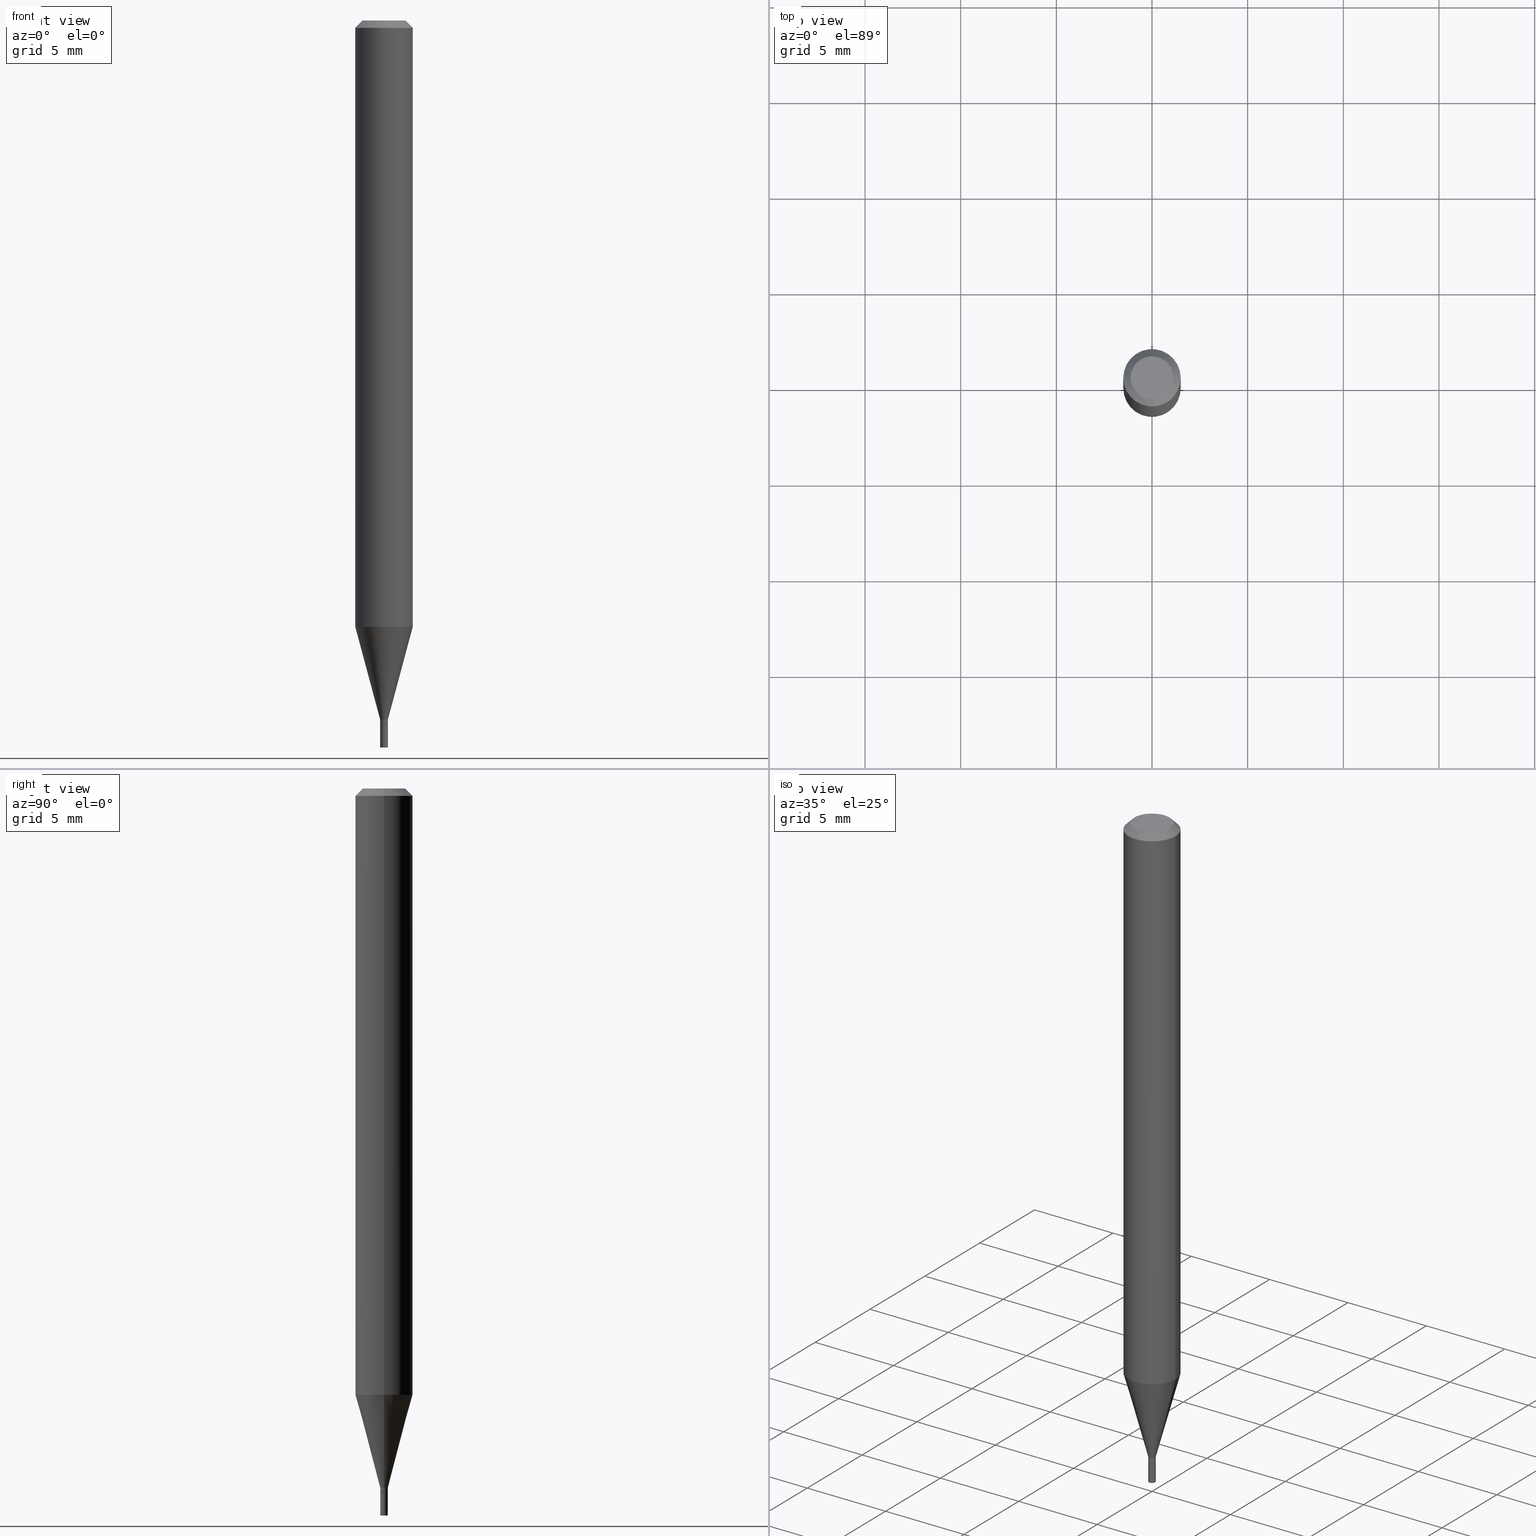
[diagram: canonical four-view strip — front | top / right | iso, engineering-drawing reading convention]
A machine part, canonical four-view strip (front | top / right | iso — engineering-drawing reading convention). The complete STEP part file that produces these views, byte-faithful:
ISO-10303-21;
HEADER;
FILE_DESCRIPTION (( 'STEP AP203' ),
    '1' );
FILE_NAME ('01825.STEP',
    '2024-03-20T01:41:43',
    ( '' ),
    ( '' ),
    'SwSTEP 2.0',
    'SolidWorks 2023',
    '' );
FILE_SCHEMA (( 'CONFIG_CONTROL_DESIGN' ));
ENDSEC;

DATA;
#1 = DIRECTION ( 'NONE',  ( -1.000000000000000000, 6.982962677686265922E-15, -4.876176775795935793E-29 ) ) ;
#2 = EDGE_CURVE ( 'NONE', #284, #251, #164, .T. ) ;
#3 = APPROVAL_STATUS ( 'not_yet_approved' ) ;
#4 = AXIS2_PLACEMENT_3D ( 'NONE', #116, #323, #402 ) ;
#5 = SECURITY_CLASSIFICATION ( '', '', #56 ) ;
#6 = APPLICATION_PROTOCOL_DEFINITION ( 'international standard', 'config_control_design', 1994, #61 ) ;
#7 = APPROVAL_ROLE ( '' ) ;
#8 = DIRECTION ( 'NONE',  ( 1.000000000000000000, -6.982962677686266711E-15, 4.876176775795936353E-29 ) ) ;
#9 = ORIENTED_EDGE ( 'NONE', *, *, #221, .F. ) ;
#10 = DIRECTION ( 'NONE',  ( -2.445468806185136597E-29, 3.491481338843145583E-15, 1.000000000000000000 ) ) ;
#11 = CARTESIAN_POINT ( 'NONE',  ( 3.519274158981029926E-29, -5.024590794729170365E-15, -1.439100000000000046 ) ) ;
#12 = VERTEX_POINT ( 'NONE', #329 ) ;
#13 = VECTOR ( 'NONE', #100, 39.37007874015748143 ) ;
#14 = CC_DESIGN_APPROVAL ( #41, ( #419 ) ) ;
#15 = LINE ( 'NONE', #246, #107 ) ;
#16 = ORIENTED_EDGE ( 'NONE', *, *, #454, .F. ) ;
#17 = LINE ( 'NONE', #400, #273 ) ;
#18 = CARTESIAN_POINT ( 'NONE',  ( 3.658665880933582389E-29, -5.223605231043229660E-15, -1.496099999999999985 ) ) ;
#19 = LINE ( 'NONE', #124, #418 ) ;
#20 = DIRECTION ( 'NONE',  ( -0.2588190451025214611, 5.211531920934550253E-15, 0.9659258262890679791 ) ) ;
#21 = AXIS2_PLACEMENT_3D ( 'NONE', #185, #360, #109 ) ;
#22 = PLANE ( 'NONE',  #257 ) ;
#23 = ORIENTED_EDGE ( 'NONE', *, *, #140, .T. ) ;
#24 =( NAMED_UNIT ( * ) PLANE_ANGLE_UNIT ( ) SI_UNIT ( $, .RADIAN. ) );
#25 = CARTESIAN_POINT ( 'NONE',  ( 3.577647911566500614E-29, -5.339627574433336753E-15, -1.496099999999999985 ) ) ;
#26 = LINE ( 'NONE', #237, #91 ) ;
#27 = CALENDAR_DATE ( 2024, 19, 3 ) ;
#28 = ADVANCED_FACE ( 'NONE', ( #449 ), #433, .T. ) ;
#29 = CIRCLE ( 'NONE', #208, 0.04404999999999999888 ) ;
#30 = ORGANIZATION ( 'UNSPECIFIED', 'UNSPECIFIED', '' ) ;
#31 = DIRECTION ( 'NONE',  ( -2.445468806185136597E-29, 3.491481338843145583E-15, 1.000000000000000000 ) ) ;
#32 = VECTOR ( 'NONE', #431, 39.37007874015748143 ) ;
#33 = DIRECTION ( 'NONE',  ( 1.000000000000000000, -6.982962677686265922E-15, 4.876176775795935793E-29 ) ) ;
#34 = ORIENTED_EDGE ( 'NONE', *, *, #132, .F. ) ;
#35 = EDGE_CURVE ( 'NONE', #193, #284, #412, .T. ) ;
#36 = PERSON_AND_ORGANIZATION ( #195, #30 ) ;
#37 = VERTEX_POINT ( 'NONE', #296 ) ;
#38 = AXIS2_PLACEMENT_3D ( 'NONE', #212, #307, #137 ) ;
#39 = CC_DESIGN_APPROVAL ( #88, ( #5 ) ) ;
#40 = DIRECTION ( 'NONE',  ( -2.445468806185136877E-29, 3.491481338843145188E-15, 1.000000000000000000 ) ) ;
#41 = APPROVAL ( #172, 'UNSPECIFIED' ) ;
#42 = ORIENTED_EDGE ( 'NONE', *, *, #132, .T. ) ;
#43 = AXIS2_PLACEMENT_3D ( 'NONE', #422, #96, #33 ) ;
#44 = ORIENTED_EDGE ( 'NONE', *, *, #108, .T. ) ;
#45 = EDGE_CURVE ( 'NONE', #254, #81, #372, .T. ) ;
#46 = ORIENTED_EDGE ( 'NONE', *, *, #102, .T. ) ;
#47 = ADVANCED_FACE ( 'NONE', ( #445 ), #231, .T. ) ;
#48 = CARTESIAN_POINT ( 'NONE',  ( -1.129890276342019696E-44, 1.613183862664992778E-30, 4.620342216119358569E-16 ) ) ;
#49 = ORIENTED_EDGE ( 'NONE', *, *, #416, .T. ) ;
#50 = CIRCLE ( 'NONE', #325, 0.05904999999999999832 ) ;
#51 = LINE ( 'NONE', #196, #426 ) ;
#52 = EDGE_LOOP ( 'NONE', ( #457, #153, #293, #432 ) ) ;
#53 = CARTESIAN_POINT ( 'NONE',  ( 0.000000000000000000, 0.000000000000000000, 0.000000000000000000 ) ) ;
#54 = VERTEX_POINT ( 'NONE', #361 ) ;
#55 = EDGE_CURVE ( 'NONE', #37, #12, #152, .T. ) ;
#56 = SECURITY_CLASSIFICATION_LEVEL ( 'unclassified' ) ;
#57 = VECTOR ( 'NONE', #224, 39.37007874015748143 ) ;
#58 = AXIS2_PLACEMENT_3D ( 'NONE', #465, #143, #312 ) ;
#59 = DIRECTION ( 'NONE',  ( -2.445468806185136597E-29, 3.491481338843145583E-15, 1.000000000000000000 ) ) ;
#60 = EDGE_CURVE ( 'NONE', #12, #37, #415, .T. ) ;
#61 = APPLICATION_CONTEXT ( 'configuration controlled 3d designs of mechanical parts and assemblies' ) ;
#62 = AXIS2_PLACEMENT_3D ( 'NONE', #413, #375, #301 ) ;
#63 = EDGE_LOOP ( 'NONE', ( #194, #327, #260, #376 ) ) ;
#64 = LINE ( 'NONE', #274, #188 ) ;
#65 = DIRECTION ( 'NONE',  ( -2.445468806185136597E-29, 3.491481338843145583E-15, 1.000000000000000000 ) ) ;
#66 = ORIENTED_EDGE ( 'NONE', *, *, #168, .F. ) ;
#67 = CIRCLE ( 'NONE', #389, 0.007849999999999921277 ) ;
#68 = AXIS2_PLACEMENT_3D ( 'NONE', #11, #253, #71 ) ;
#69 = DIRECTION ( 'NONE',  ( -2.445468806185136877E-29, 3.491481338843145188E-15, 1.000000000000000000 ) ) ;
#70 = EDGE_CURVE ( 'NONE', #192, #284, #67, .T. ) ;
#71 = DIRECTION ( 'NONE',  ( 1.000000000000000000, -6.982962677686276177E-15, 0.000000000000000000 ) ) ;
#72 = ORIENTED_EDGE ( 'NONE', *, *, #140, .F. ) ;
#73 = ORIENTED_EDGE ( 'NONE', *, *, #215, .F. ) ;
#74 = CONICAL_SURFACE ( 'NONE', #462, 0.05904999999999999832, 0.7853981633974330689 ) ;
#75 = ADVANCED_FACE ( 'NONE', ( #466 ), #142, .F. ) ;
#76 = AXIS2_PLACEMENT_3D ( 'NONE', #25, #446, #261 ) ;
#77 = DIRECTION ( 'NONE',  ( -2.445468806185136597E-29, 3.491481338843145583E-15, 1.000000000000000000 ) ) ;
#78 = LENGTH_MEASURE_WITH_UNIT ( LENGTH_MEASURE( 0.02539999999999999897 ), #184 );
#79 = DIRECTION ( 'NONE',  ( -2.445468806185136597E-29, 3.491481338843145583E-15, 1.000000000000000000 ) ) ;
#80 = EDGE_LOOP ( 'NONE', ( #160, #97, #216, #291 ) ) ;
#81 = VERTEX_POINT ( 'NONE', #461 ) ;
#82 = DIRECTION ( 'NONE',  ( 2.438088387897960049E-29, -3.491481338843145188E-15, -1.000000000000000000 ) ) ;
#83 = ADVANCED_FACE ( 'NONE', ( #311 ), #74, .T. ) ;
#84 = CARTESIAN_POINT ( 'NONE',  ( 0.007349999999999998895, -5.110132087530827984E-15, -1.448899999999999855 ) ) ;
#85 = AXIS2_PLACEMENT_3D ( 'NONE', #154, #438, #112 ) ;
#86 = FACE_OUTER_BOUND ( 'NONE', #437, .T. ) ;
#87 = APPROVAL_ROLE ( '' ) ;
#88 = APPROVAL ( #127, 'UNSPECIFIED' ) ;
#89 = EDGE_CURVE ( 'NONE', #251, #406, #64, .T. ) ;
#90 = DIRECTION ( 'NONE',  ( -2.445468806185136597E-29, 3.491481338843145583E-15, 1.000000000000000000 ) ) ;
#91 = VECTOR ( 'NONE', #95, 39.37007874015748143 ) ;
#92 = CC_DESIGN_SECURITY_CLASSIFICATION ( #5, ( #419 ) ) ;
#93 = PERSON_AND_ORGANIZATION_ROLE ( 'creator' ) ;
#94 = CARTESIAN_POINT ( 'NONE',  ( 0.05904999999999999832, -4.574846268510561447E-16, -0.01499999999999999944 ) ) ;
#95 = DIRECTION ( 'NONE',  ( -2.445468806185136877E-29, 3.491481338843145188E-15, 1.000000000000000000 ) ) ;
#96 = DIRECTION ( 'NONE',  ( -2.438088387897960049E-29, 3.491481338843145188E-15, 1.000000000000000000 ) ) ;
#97 = ORIENTED_EDGE ( 'NONE', *, *, #168, .T. ) ;
#98 = DIRECTION ( 'NONE',  ( 1.000000000000000000, -6.982962677686265922E-15, 4.819687581474398999E-29 ) ) ;
#99 = AXIS2_PLACEMENT_3D ( 'NONE', #53, #79, #122 ) ;
#100 = DIRECTION ( 'NONE',  ( -0.7071067811865642261, 7.493145998870414114E-15, 0.7071067811865309194 ) ) ;
#101 = DIRECTION ( 'NONE',  ( 1.000000000000000000, -6.982962677686261189E-15, 0.000000000000000000 ) ) ;
#102 = EDGE_CURVE ( 'NONE', #314, #407, #342, .T. ) ;
#103 = ORIENTED_EDGE ( 'NONE', *, *, #2, .T. ) ;
#104 = ORIENTED_EDGE ( 'NONE', *, *, #60, .F. ) ;
#105 = CYLINDRICAL_SURFACE ( 'NONE', #399, 0.007849999999999999339 ) ;
#106 = ORIENTED_EDGE ( 'NONE', *, *, #215, .T. ) ;
#107 = VECTOR ( 'NONE', #40, 39.37007874015748143 ) ;
#108 = EDGE_CURVE ( 'NONE', #370, #111, #336, .T. ) ;
#109 = DIRECTION ( 'NONE',  ( 1.000000000000000000, -6.982962677686327453E-15, 0.000000000000000000 ) ) ;
#110 = CARTESIAN_POINT ( 'NONE',  ( 0.000000000000000000, 0.000000000000000000, 0.000000000000000000 ) ) ;
#111 = VERTEX_POINT ( 'NONE', #141 ) ;
#112 = DIRECTION ( 'NONE',  ( 1.000000000000000000, -6.982962677686276177E-15, 0.000000000000000000 ) ) ;
#113 = EDGE_CURVE ( 'NONE', #180, #192, #421, .T. ) ;
#114 = EDGE_LOOP ( 'NONE', ( #381, #245, #230, #123 ) ) ;
#115 = PRODUCT ( '01825', '01825', '', ( #144 ) ) ;
#116 = CARTESIAN_POINT ( 'NONE',  ( 3.668203209277705088E-31, -5.237222008264718399E-17, -0.01499999999999999944 ) ) ;
#117 = ORIENTED_EDGE ( 'NONE', *, *, #45, .F. ) ;
#118 = CONICAL_SURFACE ( 'NONE', #235, 0.007349999999999998895, 0.7853981633974718157 ) ;
#119 = DIRECTION ( 'NONE',  ( -2.445468806185136597E-29, 3.491481338843145583E-15, 1.000000000000000000 ) ) ;
#120 = DIRECTION ( 'NONE',  ( -2.445468806185136597E-29, 3.491481338843145583E-15, 1.000000000000000000 ) ) ;
#121 = CC_DESIGN_DATE_AND_TIME_ASSIGNMENT ( #134, #385, ( #272 ) ) ;
#122 = DIRECTION ( 'NONE',  ( 1.000000000000000000, -6.982962677686265922E-15, 4.876176775795935793E-29 ) ) ;
#123 = ORIENTED_EDGE ( 'NONE', *, *, #70, .F. ) ;
#124 = CARTESIAN_POINT ( 'NONE',  ( -0.007849999999999919542, 5.577760475716729290E-17, -3.861364045850061986E-31 ) ) ;
#125 = ORIENTED_EDGE ( 'NONE', *, *, #239, .F. ) ;
#126 = CARTESIAN_POINT ( 'NONE',  ( 0.000000000000000000, 0.000000000000000000, 0.000000000000000000 ) ) ;
#127 = APPROVAL_STATUS ( 'not_yet_approved' ) ;
#128 = AXIS2_PLACEMENT_3D ( 'NONE', #18, #393, #179 ) ;
#129 = AXIS2_PLACEMENT_3D ( 'NONE', #156, #10, #101 ) ;
#130 = APPROVAL_PERSON_ORGANIZATION ( #139, #88, #234 ) ;
#131 = PERSON_AND_ORGANIZATION ( #195, #30 ) ;
#132 = EDGE_CURVE ( 'NONE', #37, #111, #26, .T. ) ;
#133 = ADVANCED_FACE ( 'NONE', ( #244 ), #302, .F. ) ;
#134 = DATE_AND_TIME ( #27, #390 ) ;
#135 = DIRECTION ( 'NONE',  ( 0.2588190451025214611, 1.565188264969620982E-15, 0.9659258262890679791 ) ) ;
#136 = AXIS2_PLACEMENT_3D ( 'NONE', #126, #59, #205 ) ;
#137 = DIRECTION ( 'NONE',  ( 1.000000000000000000, -6.982962677686273021E-15, 0.000000000000000000 ) ) ;
#138 = DATE_AND_TIME ( #384, #304 ) ;
#139 = PERSON_AND_ORGANIZATION ( #195, #30 ) ;
#140 = EDGE_CURVE ( 'NONE', #392, #54, #183, .T. ) ;
#141 = CARTESIAN_POINT ( 'NONE',  ( -0.007849999999999999339, -5.085428666689364293E-15, -1.448899999999999855 ) ) ;
#142 = PLANE ( 'NONE',  #334 ) ;
#143 = DIRECTION ( 'NONE',  ( -2.445468806185136597E-29, 3.491481338843145583E-15, 1.000000000000000000 ) ) ;
#144 = MECHANICAL_CONTEXT ( 'NONE', #61, 'mechanical' ) ;
#145 = ADVANCED_FACE ( 'NONE', ( #452 ), #209, .T. ) ;
#146 = DIRECTION ( 'NONE',  ( 1.000000000000000000, -6.982962677686273021E-15, 0.000000000000000000 ) ) ;
#147 = DIRECTION ( 'NONE',  ( 0.7071067811865368036, -7.319954787623219758E-15, -0.7071067811865583419 ) ) ;
#148 = ADVANCED_FACE ( 'NONE', ( #460 ), #105, .T. ) ;
#149 = CARTESIAN_POINT ( 'NONE',  ( -0.007849999999999921277, -5.001283966423245454E-15, -1.448400000000000132 ) ) ;
#150 = FACE_OUTER_BOUND ( 'NONE', #227, .T. ) ;
#151 = CARTESIAN_POINT ( 'NONE',  ( -0.007349999999999998895, -5.003933193597356655E-15, -1.448899999999999855 ) ) ;
#152 = CIRCLE ( 'NONE', #303, 0.007849999999999999339 ) ;
#153 = ORIENTED_EDGE ( 'NONE', *, *, #265, .T. ) ;
#154 = CARTESIAN_POINT ( 'NONE',  ( 3.519274158981029926E-29, -5.024590794729170365E-15, -1.439100000000000046 ) ) ;
#155 = EDGE_LOOP ( 'NONE', ( #66, #401, #247, #23 ) ) ;
#156 = CARTESIAN_POINT ( 'NONE',  ( 3.543239753281643902E-29, -5.058807311849834201E-15, -1.448899999999999855 ) ) ;
#157 = FACE_OUTER_BOUND ( 'NONE', #440, .T. ) ;
#158 = ORIENTED_EDGE ( 'NONE', *, *, #55, .F. ) ;
#159 = CYLINDRICAL_SURFACE ( 'NONE', #99, 0.007849999999999999339 ) ;
#160 = ORIENTED_EDGE ( 'NONE', *, *, #377, .F. ) ;
#161 = AXIS2_PLACEMENT_3D ( 'NONE', #423, #382, #98 ) ;
#162 = DIRECTION ( 'NONE',  ( 1.000000000000000000, -6.982962677686265922E-15, 4.876176775795935793E-29 ) ) ;
#163 = DIRECTION ( 'NONE',  ( -2.445468806185136597E-29, 3.491481338843145583E-15, 1.000000000000000000 ) ) ;
#164 = LINE ( 'NONE', #300, #232 ) ;
#165 = CARTESIAN_POINT ( 'NONE',  ( 0.007849999999999921277, -5.111877828200249487E-15, -1.448400000000000132 ) ) ;
#166 = APPLICATION_CONTEXT ( 'configuration controlled 3d designs of mechanical parts and assemblies' ) ;
#167 = CARTESIAN_POINT ( 'NONE',  ( 3.668203209277705088E-31, -5.237222008264718399E-17, -0.01499999999999999944 ) ) ;
#168 = EDGE_CURVE ( 'NONE', #407, #54, #171, .T. ) ;
#169 = COORDINATED_UNIVERSAL_TIME_OFFSET ( 5, 0, .BEHIND. ) ;
#170 = CIRCLE ( 'NONE', #68, 0.007849999999999917807 ) ;
#171 = LINE ( 'NONE', #94, #405 ) ;
#172 = APPROVAL_STATUS ( 'not_yet_approved' ) ;
#173 = DATE_TIME_ROLE ( 'classification_date' ) ;
#174 = CIRCLE ( 'NONE', #223, 0.007349999999999998895 ) ;
#175 = CARTESIAN_POINT ( 'NONE',  ( 0.05904999999999999138, -4.769778990434194719E-15, -1.248018998652473677 ) ) ;
#176 = DIRECTION ( 'NONE',  ( -1.000000000000000000, 6.982962677686266711E-15, 0.000000000000000000 ) ) ;
#177 = FACE_OUTER_BOUND ( 'NONE', #114, .T. ) ;
#178 = ORIENTED_EDGE ( 'NONE', *, *, #113, .T. ) ;
#179 = DIRECTION ( 'NONE',  ( 1.000000000000000000, -6.982962677686327453E-15, 0.000000000000000000 ) ) ;
#180 = VERTEX_POINT ( 'NONE', #151 ) ;
#181 = DIRECTION ( 'NONE',  ( 1.000000000000000000, -6.982962677686267499E-15, 4.876176775795936353E-29 ) ) ;
#182 = ADVANCED_FACE ( 'NONE', ( #157 ), #328, .T. ) ;
#183 = CIRCLE ( 'NONE', #282, 0.05904999999999999832 ) ;
#184 =( LENGTH_UNIT ( ) NAMED_UNIT ( * ) SI_UNIT ( $, .METRE. ) );
#185 = CARTESIAN_POINT ( 'NONE',  ( 3.543239753281643902E-29, -5.058807311849834201E-15, -1.448899999999999855 ) ) ;
#186 = EDGE_CURVE ( 'NONE', #314, #392, #396, .T. ) ;
#187 = CARTESIAN_POINT ( 'NONE',  ( 0.000000000000000000, 0.000000000000000000, 0.000000000000000000 ) ) ;
#188 = VECTOR ( 'NONE', #135, 39.37007874015748143 ) ;
#189 = ORIENTED_EDGE ( 'NONE', *, *, #108, .F. ) ;
#190 = CC_DESIGN_PERSON_AND_ORGANIZATION_ASSIGNMENT ( #268, #458, ( #5 ) ) ;
#191 = COORDINATED_UNIVERSAL_TIME_OFFSET ( 5, 0, .BEHIND. ) ;
#192 = VERTEX_POINT ( 'NONE', #149 ) ;
#193 = VERTEX_POINT ( 'NONE', #286 ) ;
#194 = ORIENTED_EDGE ( 'NONE', *, *, #248, .T. ) ;
#195 = PERSON ( 'UNSPECIFIED', 'UNSPECIFIED', 'UNSPECIFIED', ('UNSPECIFIED'), ('UNSPECIFIED'), ('UNSPECIFIED') ) ;
#196 = CARTESIAN_POINT ( 'NONE',  ( 0.007849999999999999339, -5.481625701983718421E-17, 3.827798768999809240E-31 ) ) ;
#197 = APPROVAL ( #3, 'UNSPECIFIED' ) ;
#198 = EDGE_LOOP ( 'NONE', ( #228, #42, #189, #365 ) ) ;
#199 = CONICAL_SURFACE ( 'NONE', #464, 0.007349999999999998895, 0.7853981633974718157 ) ;
#200 = CC_DESIGN_APPROVAL ( #197, ( #272 ) ) ;
#201 = DIRECTION ( 'NONE',  ( -2.445468806185136877E-29, 3.491481338843145188E-15, 1.000000000000000000 ) ) ;
#202 = ORIENTED_EDGE ( 'NONE', *, *, #35, .F. ) ;
#203 = CARTESIAN_POINT ( 'NONE',  ( 3.543239753281643902E-29, -5.058807311849834201E-15, -1.448899999999999855 ) ) ;
#204 = PERSON_AND_ORGANIZATION ( #195, #30 ) ;
#205 = DIRECTION ( 'NONE',  ( 1.000000000000000000, -6.982962677686266711E-15, 4.876176775795936353E-29 ) ) ;
#206 = CYLINDRICAL_SURFACE ( 'NONE', #58, 0.007849999999999919542 ) ;
#207 = COORDINATED_UNIVERSAL_TIME_OFFSET ( 5, 0, .BEHIND. ) ;
#208 = AXIS2_PLACEMENT_3D ( 'NONE', #48, #163, #387 ) ;
#209 = CYLINDRICAL_SURFACE ( 'NONE', #136, 0.05904999999999999832 ) ;
#210 = ORIENTED_EDGE ( 'NONE', *, *, #89, .T. ) ;
#211 = DIRECTION ( 'NONE',  ( 0.000000000000000000, 0.000000000000000000, 1.000000000000000000 ) ) ;
#212 = CARTESIAN_POINT ( 'NONE',  ( 3.542017018878552222E-29, -5.057061571180412698E-15, -1.448400000000000132 ) ) ;
#213 = ORIENTED_EDGE ( 'NONE', *, *, #435, .T. ) ;
#214 = CARTESIAN_POINT ( 'NONE',  ( 3.051991530731034752E-29, -4.357435044316820587E-15, -1.248018998652473677 ) ) ;
#215 = EDGE_CURVE ( 'NONE', #81, #392, #17, .T. ) ;
#216 = ORIENTED_EDGE ( 'NONE', *, *, #321, .T. ) ;
#217 = ADVANCED_BREP_SHAPE_REPRESENTATION ( '01825', ( #270, #281, #455 ), #290 ) ;
#218 = UNCERTAINTY_MEASURE_WITH_UNIT (LENGTH_MEASURE( 1.000000000000000082E-05 ), #298, 'distance_accuracy_value', 'NONE');
#219 = CARTESIAN_POINT ( 'NONE',  ( 3.519274158981029926E-29, -5.024590794729170365E-15, -1.439100000000000046 ) ) ;
#220 = APPROVAL_DATE_TIME ( #331, #88 ) ;
#221 = EDGE_CURVE ( 'NONE', #81, #406, #441, .T. ) ;
#222 = DIRECTION ( 'NONE',  ( 1.000000000000000000, -6.982962677686276177E-15, 0.000000000000000000 ) ) ;
#223 = AXIS2_PLACEMENT_3D ( 'NONE', #203, #367, #259 ) ;
#224 = DIRECTION ( 'NONE',  ( 0.7071067811865642261, -2.468850131082431399E-15, 0.7071067811865309194 ) ) ;
#225 = ADVANCED_FACE ( 'NONE', ( #359 ), #356, .T. ) ;
#226 = DIRECTION ( 'NONE',  ( -1.000000000000000000, 6.982962677686265922E-15, -4.876176775795935793E-29 ) ) ;
#227 = EDGE_LOOP ( 'NONE', ( #397, #439, #103, #125 ) ) ;
#228 = ORIENTED_EDGE ( 'NONE', *, *, #60, .T. ) ;
#229 = CARTESIAN_POINT ( 'NONE',  ( 0.007849999999999999339, -5.113623568869671780E-15, -1.448899999999999855 ) ) ;
#230 = ORIENTED_EDGE ( 'NONE', *, *, #35, .T. ) ;
#231 = CONICAL_SURFACE ( 'NONE', #453, 0.007849999999999917807, 0.2617993877991501850 ) ;
#232 = VECTOR ( 'NONE', #255, 39.37007874015748143 ) ;
#233 = CARTESIAN_POINT ( 'NONE',  ( -0.04404999999999999888, 3.337856159934042520E-16, 4.620342216119336875E-16 ) ) ;
#234 = APPROVAL_ROLE ( '' ) ;
#235 = AXIS2_PLACEMENT_3D ( 'NONE', #442, #119, #299 ) ;
#236 = APPROVAL_PERSON_ORGANIZATION ( #352, #197, #7 ) ;
#237 = CARTESIAN_POINT ( 'NONE',  ( -0.007849999999999999339, 5.577760475716785990E-17, -3.861364045850100522E-31 ) ) ;
#238 = PERSON_AND_ORGANIZATION ( #195, #30 ) ;
#239 = EDGE_CURVE ( 'NONE', #254, #251, #170, .T. ) ;
#240 = DIRECTION ( 'NONE',  ( -2.445468806185136597E-29, 3.491481338843145583E-15, 1.000000000000000000 ) ) ;
#241 = ORIENTED_EDGE ( 'NONE', *, *, #430, .T. ) ;
#242 = DIRECTION ( 'NONE',  ( 1.000000000000000000, -6.982962677686327453E-15, 0.000000000000000000 ) ) ;
#243 = EDGE_LOOP ( 'NONE', ( #241, #106, #287, #16 ) ) ;
#244 = FACE_OUTER_BOUND ( 'NONE', #414, .T. ) ;
#245 = ORIENTED_EDGE ( 'NONE', *, *, #353, .T. ) ;
#246 = CARTESIAN_POINT ( 'NONE',  ( 0.05904999999999999832, -4.123439461173740327E-16, 2.879382386107500220E-30 ) ) ;
#247 = ORIENTED_EDGE ( 'NONE', *, *, #186, .T. ) ;
#248 = EDGE_CURVE ( 'NONE', #251, #254, #317, .T. ) ;
#249 = CARTESIAN_POINT ( 'NONE',  ( -0.05904999999999999832, 3.599717260347268549E-16, -0.01499999999999999944 ) ) ;
#250 = CIRCLE ( 'NONE', #21, 0.007849999999999999339 ) ;
#251 = VERTEX_POINT ( 'NONE', #294 ) ;
#252 = CYLINDRICAL_SURFACE ( 'NONE', #373, 0.007849999999999919542 ) ;
#253 = DIRECTION ( 'NONE',  ( -2.445468806185136597E-29, 3.491481338843145583E-15, 1.000000000000000000 ) ) ;
#254 = VERTEX_POINT ( 'NONE', #330 ) ;
#255 = DIRECTION ( 'NONE',  ( -2.445468806185136877E-29, 3.491481338843145188E-15, 1.000000000000000000 ) ) ;
#256 = ORIENTED_EDGE ( 'NONE', *, *, #55, .T. ) ;
#257 = AXIS2_PLACEMENT_3D ( 'NONE', #263, #82, #226 ) ;
#258 = ADVANCED_FACE ( 'NONE', ( #339 ), #341, .F. ) ;
#259 = DIRECTION ( 'NONE',  ( 1.000000000000000000, -6.982962677686261189E-15, 0.000000000000000000 ) ) ;
#260 = ORIENTED_EDGE ( 'NONE', *, *, #430, .F. ) ;
#261 = DIRECTION ( 'NONE',  ( 1.000000000000000000, -6.982962677686265922E-15, 4.876176775795935793E-29 ) ) ;
#262 = CARTESIAN_POINT ( 'NONE',  ( 3.519274158981029926E-29, -5.024590794729170365E-15, -1.439100000000000046 ) ) ;
#263 = CARTESIAN_POINT ( 'NONE',  ( 3.075995059520799729E-16, 0.04404999999999999888, 7.721735782992738734E-17 ) ) ;
#264 = ORIENTED_EDGE ( 'NONE', *, *, #345, .T. ) ;
#265 = EDGE_CURVE ( 'NONE', #192, #254, #19, .T. ) ;
#266 = APPROVAL_DATE_TIME ( #417, #41 ) ;
#267 = AXIS2_PLACEMENT_3D ( 'NONE', #275, #240, #242 ) ;
#268 = PERSON_AND_ORGANIZATION ( #195, #30 ) ;
#269 = ADVANCED_FACE ( 'NONE', ( #409 ), #159, .T. ) ;
#270 = MANIFOLD_SOLID_BREP ( 'Body-Move/Copy2[1]', #425 ) ;
#271 = VECTOR ( 'NONE', #20, 39.37007874015748143 ) ;
#272 = PRODUCT_DEFINITION ( 'UNKNOWN', '', #419, #358 ) ;
#273 = VECTOR ( 'NONE', #69, 39.37007874015748143 ) ;
#274 = CARTESIAN_POINT ( 'NONE',  ( 0.007849999999999917807, -5.079407051749007154E-15, -1.439100000000000046 ) ) ;
#275 = CARTESIAN_POINT ( 'NONE',  ( 3.543239753281643902E-29, -5.058807311849834201E-15, -1.448899999999999855 ) ) ;
#276 = CARTESIAN_POINT ( 'NONE',  ( 0.04404999999999999888, -3.798447818264452683E-16, 4.620342216119383221E-16 ) ) ;
#277 = DIRECTION ( 'NONE',  ( 2.445468806185136597E-29, -3.491481338843145583E-15, -1.000000000000000000 ) ) ;
#278 = DIRECTION ( 'NONE',  ( -2.445468806185136597E-29, 3.491481338843145583E-15, 1.000000000000000000 ) ) ;
#279 = APPLICATION_PROTOCOL_DEFINITION ( 'international standard', 'config_control_design', 1994, #166 ) ;
#280 = AXIS2_PLACEMENT_3D ( 'NONE', #262, #77, #366 ) ;
#281 = MANIFOLD_SOLID_BREP ( 'Body-Move/Copy2[2]', #434 ) ;
#282 = AXIS2_PLACEMENT_3D ( 'NONE', #167, #350, #388 ) ;
#283 = CARTESIAN_POINT ( 'NONE',  ( -0.007349999999999998895, -5.006582420771466278E-15, -1.448899999999999855 ) ) ;
#284 = VERTEX_POINT ( 'NONE', #165 ) ;
#285 = CC_DESIGN_PERSON_AND_ORGANIZATION_ASSIGNMENT ( #131, #378, ( #272 ) ) ;
#286 = CARTESIAN_POINT ( 'NONE',  ( 0.007349999999999998895, -5.110132087530827984E-15, -1.448899999999999855 ) ) ;
#287 = ORIENTED_EDGE ( 'NONE', *, *, #321, .F. ) ;
#288 = PRODUCT_RELATED_PRODUCT_CATEGORY ( 'detail', '', ( #115 ) ) ;
#289 = DIRECTION ( 'NONE',  ( -2.445468806185136597E-29, 3.491481338843145583E-15, 1.000000000000000000 ) ) ;
#290 =( GEOMETRIC_REPRESENTATION_CONTEXT ( 3 ) GLOBAL_UNCERTAINTY_ASSIGNED_CONTEXT ( ( #218 ) ) GLOBAL_UNIT_ASSIGNED_CONTEXT ( ( #298, #24, #374 ) ) REPRESENTATION_CONTEXT ( 'NONE', 'WORKASPACE' ) );
#291 = ORIENTED_EDGE ( 'NONE', *, *, #186, .F. ) ;
#292 = DIRECTION ( 'NONE',  ( -2.445468806185136597E-29, 3.491481338843145583E-15, 1.000000000000000000 ) ) ;
#293 = ORIENTED_EDGE ( 'NONE', *, *, #248, .F. ) ;
#294 = CARTESIAN_POINT ( 'NONE',  ( 0.007849999999999917807, -5.079407051749007154E-15, -1.439100000000000046 ) ) ;
#295 = ORIENTED_EDGE ( 'NONE', *, *, #391, .F. ) ;
#296 = CARTESIAN_POINT ( 'NONE',  ( -0.007849999999999999339, -5.085428666689364293E-15, -1.496099999999999985 ) ) ;
#297 = CIRCLE ( 'NONE', #62, 0.05904999999999999832 ) ;
#298 =( CONVERSION_BASED_UNIT ( 'INCH', #78 ) LENGTH_UNIT ( ) NAMED_UNIT ( #410 ) );
#299 = DIRECTION ( 'NONE',  ( 1.000000000000000000, -6.982962677686261189E-15, 0.000000000000000000 ) ) ;
#300 = CARTESIAN_POINT ( 'NONE',  ( 0.007849999999999919542, -5.481625701983663571E-17, 3.827798768999770704E-31 ) ) ;
#301 = DIRECTION ( 'NONE',  ( 1.000000000000000000, -6.982962677686266711E-15, 0.000000000000000000 ) ) ;
#302 = PLANE ( 'NONE',  #43 ) ;
#303 = AXIS2_PLACEMENT_3D ( 'NONE', #332, #120, #364 ) ;
#304 = LOCAL_TIME ( 21, 41, 43.00000000000000000, #463 ) ;
#305 = ORIENTED_EDGE ( 'NONE', *, *, #435, .F. ) ;
#306 = DIRECTION ( 'NONE',  ( 1.000000000000000000, -6.982962677686261189E-15, 0.000000000000000000 ) ) ;
#307 = DIRECTION ( 'NONE',  ( -2.445468806185136597E-29, 3.491481338843145583E-15, 1.000000000000000000 ) ) ;
#308 = COORDINATED_UNIVERSAL_TIME_OFFSET ( 5, 0, .BEHIND. ) ;
#309 = CARTESIAN_POINT ( 'NONE',  ( 5.481625701987260900E-17, 0.007849999999994939151, -1.448899999999999855 ) ) ;
#310 = CIRCLE ( 'NONE', #129, 0.007349999999999998895 ) ;
#311 = FACE_OUTER_BOUND ( 'NONE', #80, .T. ) ;
#312 = DIRECTION ( 'NONE',  ( 1.000000000000000000, -6.982962677686267499E-15, 4.876176775795936353E-29 ) ) ;
#313 = CARTESIAN_POINT ( 'NONE',  ( 3.543239753281643902E-29, -5.058807311849834201E-15, -1.448899999999999855 ) ) ;
#314 = VERTEX_POINT ( 'NONE', #233 ) ;
#315 = CARTESIAN_POINT ( 'NONE',  ( 3.542017018878552222E-29, -5.057061571180412698E-15, -1.448400000000000132 ) ) ;
#316 = CARTESIAN_POINT ( 'NONE',  ( 0.000000000000000000, 0.000000000000000000, 0.000000000000000000 ) ) ;
#317 = CIRCLE ( 'NONE', #85, 0.007849999999999917807 ) ;
#318 = PERSON_AND_ORGANIZATION_ROLE ( 'design_owner' ) ;
#319 = DIRECTION ( 'NONE',  ( -2.445468806185136597E-29, 3.491481338843145583E-15, 1.000000000000000000 ) ) ;
#320 = ORIENTED_EDGE ( 'NONE', *, *, #239, .T. ) ;
#321 = EDGE_CURVE ( 'NONE', #54, #392, #297, .T. ) ;
#322 = DIRECTION ( 'NONE',  ( 1.000000000000000000, -6.982962677686273021E-15, 0.000000000000000000 ) ) ;
#323 = DIRECTION ( 'NONE',  ( 2.445468806185136597E-29, -3.491481338843145583E-15, -1.000000000000000000 ) ) ;
#324 = DIRECTION ( 'NONE',  ( -2.445468806185136597E-29, 3.491481338843145583E-15, 1.000000000000000000 ) ) ;
#325 = AXIS2_PLACEMENT_3D ( 'NONE', #354, #65, #322 ) ;
#326 = LOCAL_TIME ( 21, 41, 43.00000000000000000, #207 ) ;
#327 = ORIENTED_EDGE ( 'NONE', *, *, #45, .T. ) ;
#328 = CYLINDRICAL_SURFACE ( 'NONE', #363, 0.05904999999999999832 ) ;
#329 = CARTESIAN_POINT ( 'NONE',  ( 0.007849999999999999339, -5.278421488063067239E-15, -1.496099999999999985 ) ) ;
#330 = CARTESIAN_POINT ( 'NONE',  ( -0.007849999999999917807, -4.453336374411242108E-15, -1.439100000000000046 ) ) ;
#331 = DATE_AND_TIME ( #403, #443 ) ;
#332 = CARTESIAN_POINT ( 'NONE',  ( 3.658665880933582389E-29, -5.223605231043229660E-15, -1.496099999999999985 ) ) ;
#333 = DIRECTION ( 'NONE',  ( -2.445468806185136877E-29, 3.491481338843145188E-15, 1.000000000000000000 ) ) ;
#334 = AXIS2_PLACEMENT_3D ( 'NONE', #309, #340, #1 ) ;
#335 = ORIENTED_EDGE ( 'NONE', *, *, #377, .T. ) ;
#336 = CIRCLE ( 'NONE', #267, 0.007849999999999999339 ) ;
#337 = CC_DESIGN_PERSON_AND_ORGANIZATION_ASSIGNMENT ( #238, #456, ( #419 ) ) ;
#338 = APPROVAL_PERSON_ORGANIZATION ( #346, #41, #87 ) ;
#339 = FACE_OUTER_BOUND ( 'NONE', #429, .T. ) ;
#340 = DIRECTION ( 'NONE',  ( 2.438088387897960049E-29, -3.491481338843145188E-15, -1.000000000000000000 ) ) ;
#341 = PLANE ( 'NONE',  #76 ) ;
#342 = CIRCLE ( 'NONE', #161, 0.04404999999999999888 ) ;
#343 = DATE_AND_TIME ( #347, #326 ) ;
#344 = LOCAL_TIME ( 21, 41, 43.00000000000000000, #308 ) ;
#345 = EDGE_CURVE ( 'NONE', #12, #370, #51, .T. ) ;
#346 = PERSON_AND_ORGANIZATION ( #195, #30 ) ;
#347 = CALENDAR_DATE ( 2024, 19, 3 ) ;
#348 = ADVANCED_FACE ( 'NONE', ( #371 ), #118, .T. ) ;
#349 = AXIS2_PLACEMENT_3D ( 'NONE', #214, #289, #436 ) ;
#350 = DIRECTION ( 'NONE',  ( -2.445468806185136597E-29, 3.491481338843145583E-15, 1.000000000000000000 ) ) ;
#351 = CARTESIAN_POINT ( 'NONE',  ( -0.05904999999999999832, -1.785328146733394932E-15, -0.01499999999999999944 ) ) ;
#352 = PERSON_AND_ORGANIZATION ( #195, #30 ) ;
#353 = EDGE_CURVE ( 'NONE', #180, #193, #174, .T. ) ;
#354 = CARTESIAN_POINT ( 'NONE',  ( 3.051991530731034752E-29, -4.357435044316820587E-15, -1.248018998652473677 ) ) ;
#355 = EDGE_LOOP ( 'NONE', ( #34, #256, #264, #424 ) ) ;
#356 = CONICAL_SURFACE ( 'NONE', #4, 0.05904999999999999832, 0.7853981633974330689 ) ;
#357 = ORIENTED_EDGE ( 'NONE', *, *, #221, .T. ) ;
#358 = DESIGN_CONTEXT ( 'detailed design', #166, 'design' ) ;
#359 = FACE_OUTER_BOUND ( 'NONE', #155, .T. ) ;
#360 = DIRECTION ( 'NONE',  ( -2.445468806185136597E-29, 3.491481338843145583E-15, 1.000000000000000000 ) ) ;
#361 = CARTESIAN_POINT ( 'NONE',  ( 0.05904999999999999832, -4.647161662000212105E-16, -0.01499999999999999944 ) ) ;
#362 = ADVANCED_FACE ( 'NONE', ( #86 ), #22, .F. ) ;
#363 = AXIS2_PLACEMENT_3D ( 'NONE', #110, #319, #8 ) ;
#364 = DIRECTION ( 'NONE',  ( 1.000000000000000000, -6.982962677686327453E-15, 0.000000000000000000 ) ) ;
#365 = ORIENTED_EDGE ( 'NONE', *, *, #345, .F. ) ;
#366 = DIRECTION ( 'NONE',  ( 1.000000000000000000, -6.982962677686276177E-15, 0.000000000000000000 ) ) ;
#367 = DIRECTION ( 'NONE',  ( -2.445468806185136597E-29, 3.491481338843145583E-15, 1.000000000000000000 ) ) ;
#368 = ORIENTED_EDGE ( 'NONE', *, *, #353, .F. ) ;
#369 = CC_DESIGN_PERSON_AND_ORGANIZATION_ASSIGNMENT ( #36, #318, ( #115 ) ) ;
#370 = VERTEX_POINT ( 'NONE', #229 ) ;
#371 = FACE_OUTER_BOUND ( 'NONE', #451, .T. ) ;
#372 = LINE ( 'NONE', #404, #271 ) ;
#373 = AXIS2_PLACEMENT_3D ( 'NONE', #187, #324, #181 ) ;
#374 =( NAMED_UNIT ( * ) SI_UNIT ( $, .STERADIAN. ) SOLID_ANGLE_UNIT ( ) );
#375 = DIRECTION ( 'NONE',  ( -2.445468806185136597E-29, 3.491481338843145583E-15, 1.000000000000000000 ) ) ;
#376 = ORIENTED_EDGE ( 'NONE', *, *, #89, .F. ) ;
#377 = EDGE_CURVE ( 'NONE', #407, #314, #29, .T. ) ;
#378 = PERSON_AND_ORGANIZATION_ROLE ( 'creator' ) ;
#379 = CC_DESIGN_DATE_AND_TIME_ASSIGNMENT ( #343, #173, ( #5 ) ) ;
#380 = CIRCLE ( 'NONE', #38, 0.007849999999999921277 ) ;
#381 = ORIENTED_EDGE ( 'NONE', *, *, #113, .F. ) ;
#382 = DIRECTION ( 'NONE',  ( -2.445468806185136597E-29, 3.491481338843145583E-15, 1.000000000000000000 ) ) ;
#383 = FACE_OUTER_BOUND ( 'NONE', #52, .T. ) ;
#384 = CALENDAR_DATE ( 2024, 19, 3 ) ;
#385 = DATE_TIME_ROLE ( 'creation_date' ) ;
#386 = CARTESIAN_POINT ( 'NONE',  ( 3.668203209277705088E-31, -5.237222008264718399E-17, -0.01499999999999999944 ) ) ;
#387 = DIRECTION ( 'NONE',  ( 1.000000000000000000, -6.982962677686265922E-15, 4.819687581474398999E-29 ) ) ;
#388 = DIRECTION ( 'NONE',  ( 1.000000000000000000, -6.982962677686266711E-15, 0.000000000000000000 ) ) ;
#389 = AXIS2_PLACEMENT_3D ( 'NONE', #315, #90, #146 ) ;
#390 = LOCAL_TIME ( 21, 41, 43.00000000000000000, #169 ) ;
#391 = EDGE_CURVE ( 'NONE', #284, #192, #380, .T. ) ;
#392 = VERTEX_POINT ( 'NONE', #351 ) ;
#393 = DIRECTION ( 'NONE',  ( -2.445468806185136597E-29, 3.491481338843145583E-15, 1.000000000000000000 ) ) ;
#394 = EDGE_LOOP ( 'NONE', ( #117, #320, #210, #9 ) ) ;
#395 = PRODUCT_DEFINITION_SHAPE ( 'NONE', 'NONE',  #272 ) ;
#396 = LINE ( 'NONE', #249, #32 ) ;
#397 = ORIENTED_EDGE ( 'NONE', *, *, #265, .F. ) ;
#398 = ADVANCED_FACE ( 'NONE', ( #383 ), #206, .T. ) ;
#399 = AXIS2_PLACEMENT_3D ( 'NONE', #444, #31, #162 ) ;
#400 = CARTESIAN_POINT ( 'NONE',  ( -0.05904999999999999832, 4.195754854663391478E-16, -2.904631170795521892E-30 ) ) ;
#401 = ORIENTED_EDGE ( 'NONE', *, *, #102, .F. ) ;
#402 = DIRECTION ( 'NONE',  ( -1.000000000000000000, 6.982962677686266711E-15, 0.000000000000000000 ) ) ;
#403 = CALENDAR_DATE ( 2024, 19, 3 ) ;
#404 = CARTESIAN_POINT ( 'NONE',  ( -0.007849999999999917807, -4.968813189972003121E-15, -1.439100000000000046 ) ) ;
#405 = VECTOR ( 'NONE', #147, 39.37007874015748143 ) ;
#406 = VERTEX_POINT ( 'NONE', #175 ) ;
#407 = VERTEX_POINT ( 'NONE', #276 ) ;
#408 = ADVANCED_FACE ( 'NONE', ( #177 ), #199, .T. ) ;
#409 = FACE_OUTER_BOUND ( 'NONE', #355, .T. ) ;
#410 = DIMENSIONAL_EXPONENTS ( 1.000000000000000000, 0.000000000000000000, 0.000000000000000000, 0.000000000000000000, 0.000000000000000000, 0.000000000000000000, 0.000000000000000000 ) ;
#411 = APPROVAL_DATE_TIME ( #138, #197 ) ;
#412 = LINE ( 'NONE', #84, #57 ) ;
#413 = CARTESIAN_POINT ( 'NONE',  ( 3.668203209277705088E-31, -5.237222008264718399E-17, -0.01499999999999999944 ) ) ;
#414 = EDGE_LOOP ( 'NONE', ( #305, #368 ) ) ;
#415 = CIRCLE ( 'NONE', #128, 0.007849999999999999339 ) ;
#416 = EDGE_CURVE ( 'NONE', #111, #370, #250, .T. ) ;
#417 = DATE_AND_TIME ( #459, #344 ) ;
#418 = VECTOR ( 'NONE', #201, 39.37007874015748143 ) ;
#419 = PRODUCT_DEFINITION_FORMATION_WITH_SPECIFIED_SOURCE ( 'ANY', '', #115, .NOT_KNOWN. ) ;
#420 = CC_DESIGN_PERSON_AND_ORGANIZATION_ASSIGNMENT ( #204, #93, ( #419 ) ) ;
#421 = LINE ( 'NONE', #283, #13 ) ;
#422 = CARTESIAN_POINT ( 'NONE',  ( 3.543239753281643902E-29, -5.058807311849834201E-15, -1.448899999999999855 ) ) ;
#423 = CARTESIAN_POINT ( 'NONE',  ( -1.129890276342019696E-44, 1.613183862664992778E-30, 4.620342216119358569E-16 ) ) ;
#424 = ORIENTED_EDGE ( 'NONE', *, *, #416, .F. ) ;
#425 = CLOSED_SHELL ( 'NONE', ( #148, #258, #269, #75 ) ) ;
#426 = VECTOR ( 'NONE', #333, 39.37007874015748143 ) ;
#427 = EDGE_LOOP ( 'NONE', ( #44, #49 ) ) ;
#428 = DIRECTION ( 'NONE',  ( 1.000000000000000000, 0.000000000000000000, 0.000000000000000000 ) ) ;
#429 = EDGE_LOOP ( 'NONE', ( #104, #158 ) ) ;
#430 = EDGE_CURVE ( 'NONE', #406, #81, #50, .T. ) ;
#431 = DIRECTION ( 'NONE',  ( -0.7071067811865368036, 2.468850131082143859E-15, -0.7071067811865583419 ) ) ;
#432 = ORIENTED_EDGE ( 'NONE', *, *, #2, .F. ) ;
#433 = CONICAL_SURFACE ( 'NONE', #280, 0.007849999999999917807, 0.2617993877991501850 ) ;
#434 = CLOSED_SHELL ( 'NONE', ( #398, #348, #83, #145, #28, #47, #182, #225, #362, #133, #408, #450 ) ) ;
#435 = EDGE_CURVE ( 'NONE', #193, #180, #310, .T. ) ;
#436 = DIRECTION ( 'NONE',  ( 1.000000000000000000, -6.982962677686273021E-15, 0.000000000000000000 ) ) ;
#437 = EDGE_LOOP ( 'NONE', ( #46, #335 ) ) ;
#438 = DIRECTION ( 'NONE',  ( -2.445468806185136597E-29, 3.491481338843145583E-15, 1.000000000000000000 ) ) ;
#439 = ORIENTED_EDGE ( 'NONE', *, *, #70, .T. ) ;
#440 = EDGE_LOOP ( 'NONE', ( #73, #357, #447, #72 ) ) ;
#441 = CIRCLE ( 'NONE', #349, 0.05904999999999999832 ) ;
#442 = CARTESIAN_POINT ( 'NONE',  ( 3.543239753281643902E-29, -5.058807311849834201E-15, -1.448899999999999855 ) ) ;
#443 = LOCAL_TIME ( 21, 41, 43.00000000000000000, #191 ) ;
#444 = CARTESIAN_POINT ( 'NONE',  ( 0.000000000000000000, 0.000000000000000000, 0.000000000000000000 ) ) ;
#445 = FACE_OUTER_BOUND ( 'NONE', #394, .T. ) ;
#446 = DIRECTION ( 'NONE',  ( -2.438088387897960049E-29, 3.491481338843145188E-15, 1.000000000000000000 ) ) ;
#447 = ORIENTED_EDGE ( 'NONE', *, *, #454, .T. ) ;
#448 = SHAPE_DEFINITION_REPRESENTATION ( #395, #217 ) ;
#449 = FACE_OUTER_BOUND ( 'NONE', #63, .T. ) ;
#450 = ADVANCED_FACE ( 'NONE', ( #150 ), #252, .T. ) ;
#451 = EDGE_LOOP ( 'NONE', ( #213, #178, #295, #202 ) ) ;
#452 = FACE_OUTER_BOUND ( 'NONE', #243, .T. ) ;
#453 = AXIS2_PLACEMENT_3D ( 'NONE', #219, #292, #222 ) ;
#454 = EDGE_CURVE ( 'NONE', #406, #54, #15, .T. ) ;
#455 = AXIS2_PLACEMENT_3D ( 'NONE', #316, #211, #428 ) ;
#456 = PERSON_AND_ORGANIZATION_ROLE ( 'design_supplier' ) ;
#457 = ORIENTED_EDGE ( 'NONE', *, *, #391, .T. ) ;
#458 = PERSON_AND_ORGANIZATION_ROLE ( 'classification_officer' ) ;
#459 = CALENDAR_DATE ( 2024, 19, 3 ) ;
#460 = FACE_OUTER_BOUND ( 'NONE', #198, .T. ) ;
#461 = CARTESIAN_POINT ( 'NONE',  ( -0.05904999999999999138, -3.937859558850481883E-15, -1.248018998652473677 ) ) ;
#462 = AXIS2_PLACEMENT_3D ( 'NONE', #386, #277, #176 ) ;
#463 = COORDINATED_UNIVERSAL_TIME_OFFSET ( 5, 0, .BEHIND. ) ;
#464 = AXIS2_PLACEMENT_3D ( 'NONE', #313, #278, #306 ) ;
#465 = CARTESIAN_POINT ( 'NONE',  ( 0.000000000000000000, 0.000000000000000000, 0.000000000000000000 ) ) ;
#466 = FACE_OUTER_BOUND ( 'NONE', #427, .T. ) ;
ENDSEC;
END-ISO-10303-21;
